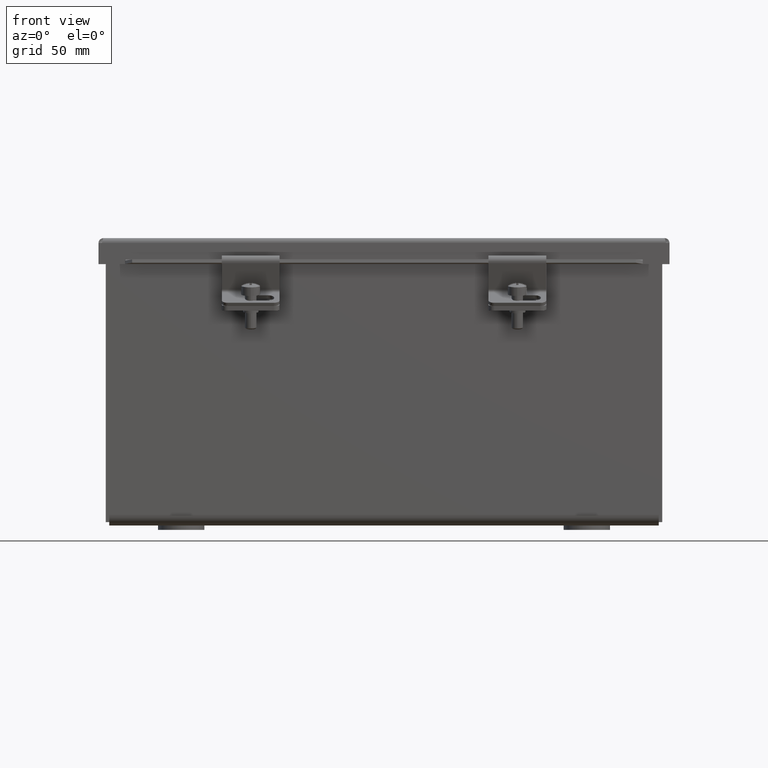
[diagram: clean part render]
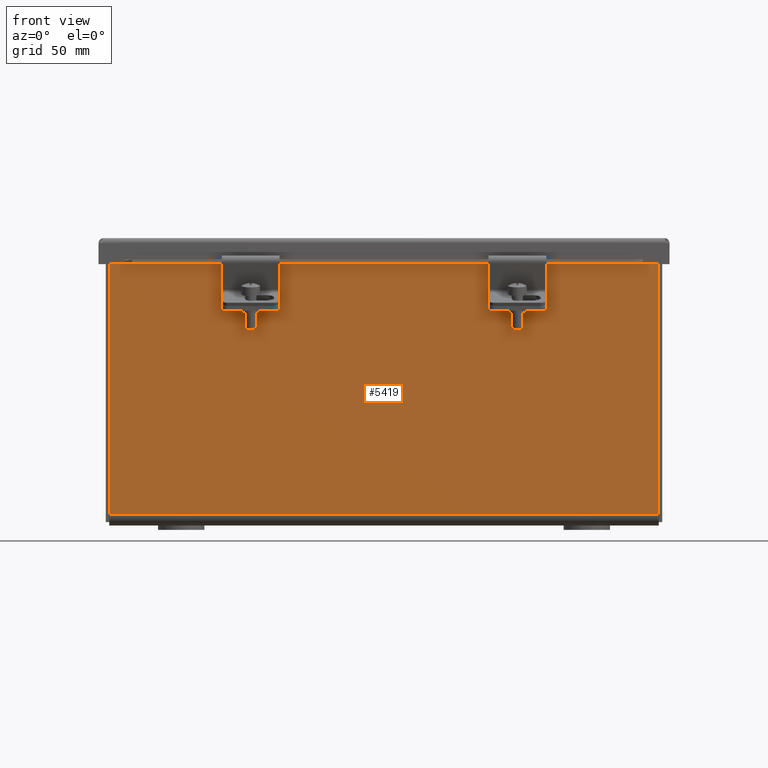
[diagram: same view with one face highlighted and labeled with its STEP entity id]
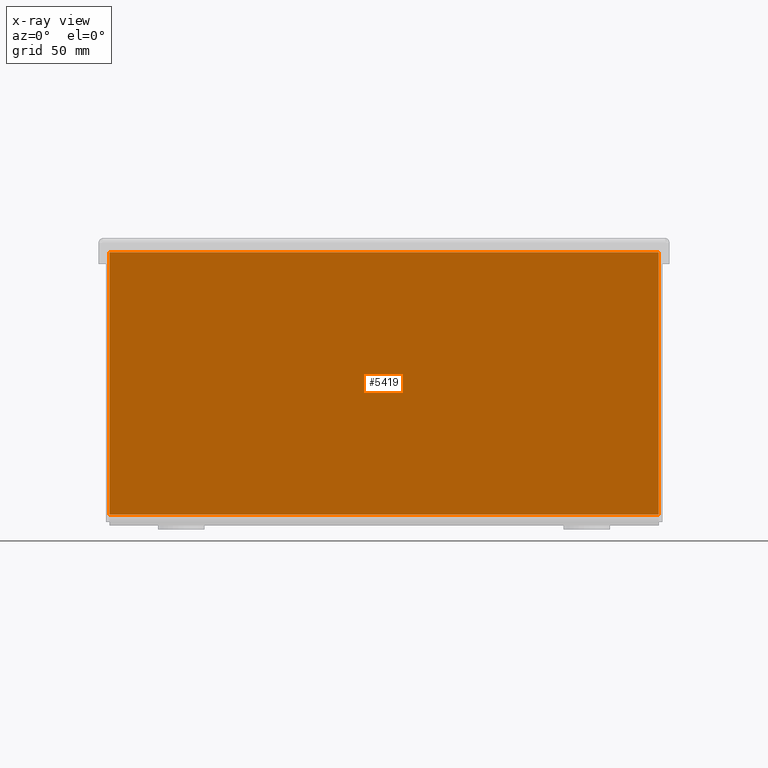
[diagram: x-ray of the same camera — body ghosted, the highlighted face saturated]
A machine part, front view. The second image highlights one B-rep face of the part: STEP entity #5419.
The next image is the same camera in x-ray: the body ghosted, the highlighted face saturated — about 0% of this face is hidden behind the body in this view.
In plain terms, the highlighted planar face has unit normal (-0, 1, 0).
Its self-contained STEP definition (entity closure, byte-faithful):
#213=PLANE('',#5926);
#422=FACE_OUTER_BOUND('',#722,.T.);
#722=EDGE_LOOP('',(#3705,#3706,#3707,#3708));
#1224=LINE('',#7947,#1792);
#1264=LINE('',#8041,#1832);
#1267=LINE('',#8048,#1835);
#1269=LINE('',#8051,#1837);
#1792=VECTOR('',#6389,0.393700787401575);
#1832=VECTOR('',#6485,0.393700787401575);
#1835=VECTOR('',#6492,0.18881);
#1837=VECTOR('',#6496,0.393700787401575);
#2361=VERTEX_POINT('',#7944);
#2362=VERTEX_POINT('',#7946);
#2388=VERTEX_POINT('',#8039);
#2390=VERTEX_POINT('',#8047);
#2841=EDGE_CURVE('',#2362,#2361,#1224,.T.);
#2888=EDGE_CURVE('',#2388,#2361,#1264,.T.);
#2891=EDGE_CURVE('',#2362,#2390,#1267,.T.);
#2893=EDGE_CURVE('',#2388,#2390,#1269,.T.);
#3705=ORIENTED_EDGE('',*,*,#2841,.T.);
#3706=ORIENTED_EDGE('',*,*,#2888,.F.);
#3707=ORIENTED_EDGE('',*,*,#2893,.T.);
#3708=ORIENTED_EDGE('',*,*,#2891,.F.);
#5419=ADVANCED_FACE('',(#422),#213,.F.);
#5926=AXIS2_PLACEMENT_3D('',#8065,#6512,#6513);
#6389=DIRECTION('',(-1.,4.83232455826276E-33,0.));
#6485=DIRECTION('',(0.,-6.12323399573677E-17,1.));
#6492=DIRECTION('',(0.,0.,-1.));
#6496=DIRECTION('',(1.,-4.83232455826276E-33,-2.95894540135882E-49));
#6512=DIRECTION('center_axis',(4.83232455826276E-33,1.,5.98988857555689E-17));
#6513=DIRECTION('ref_axis',(1.,-4.83232455826276E-33,-2.95894540135882E-49));
#7944=CARTESIAN_POINT('',(-1.32925132569011E-34,-3.7153132713834E-16,5.89475));
#7946=CARTESIAN_POINT('',(11.852,-3.7153132713834E-16,5.89475));
#7947=CARTESIAN_POINT('',(8.889,-3.7153132713834E-16,5.89475));
#8039=CARTESIAN_POINT('',(0.,-2.04527548708822E-17,0.23025));
#8041=CARTESIAN_POINT('',(0.,-2.04527548708822E-17,0.23025));
#8047=CARTESIAN_POINT('',(11.852,-1.69141044266923E-17,0.23025));
#8048=CARTESIAN_POINT('',(11.852,-1.69141044266923E-17,-0.362914108924289));
#8051=CARTESIAN_POINT('',(5.926,-3.41119948392035E-17,0.23025));
#8065=CARTESIAN_POINT('Origin',(5.926,-1.9894758698801E-16,2.96683397276893));